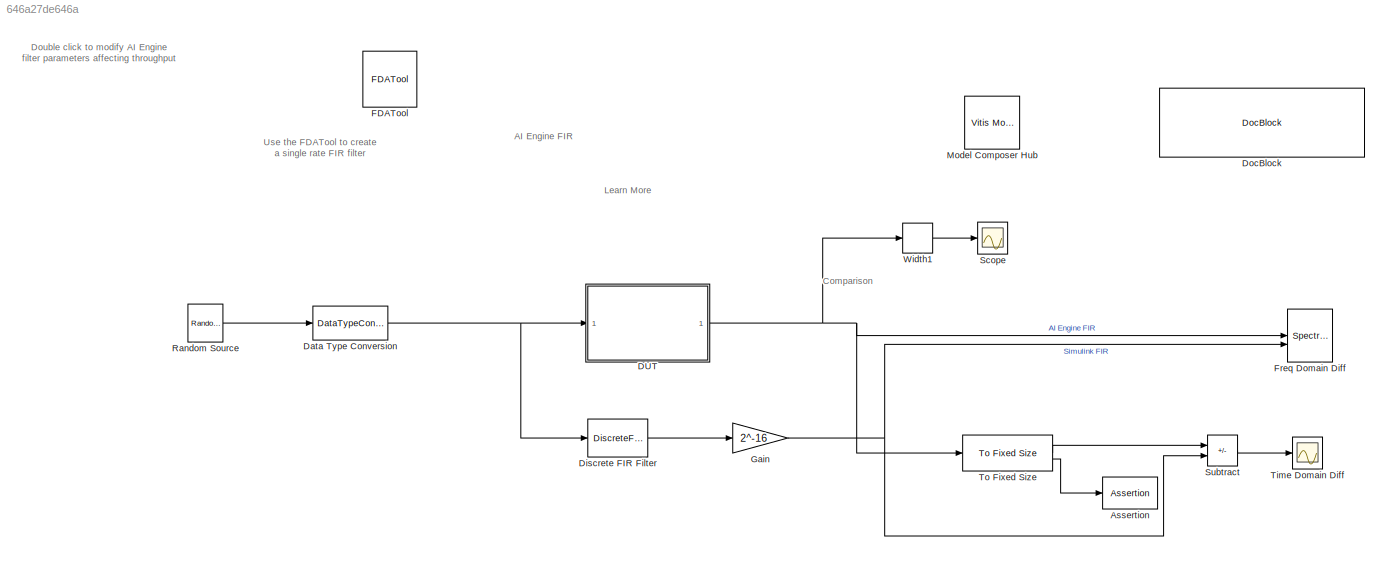
MODEL slx_646a27de646a
KIND model
CONFIG AbsTol = auto
CONFIG EnableMultiTasking = off
CONFIG FixedStep = auto
CONFIG InitFcn = set_params
CONFIG MaxStep = auto
CONFIG MinStep = auto
CONFIG RelTol = 1e-3
CONFIG SampleTimeConstraint = Unconstrained
CONFIG SolverName = VariableStepAuto
CONFIG StartTime = 0.0
CONFIG StopTime = 4096*1/200e6
WORKSPACE source: mxarray member
WORKSPACE cascade_stage = 6
WORKSPACE frame_size = 1024
WORKSPACE max_fft_size = 1024
WORKSPACE window_size = 256
BLOCK [Assertion] Assertion
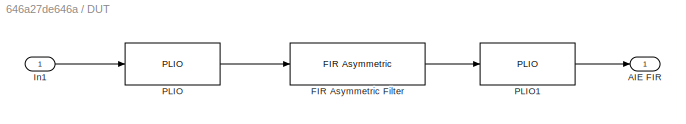
BLOCK [SubSystem] DUT
BLOCK [Outport] DUT/AIE FIR
BLOCK [Reference] DUT/FIR Asymmetric Filter  REF=aieDSP/FIR Asymmetric
  SourceBlock = aieDSP/FIR Asymmetric
  SourceType = FIR Asymmetric
BLOCK [Inport] DUT/In1
BLOCK [Reference] DUT/PLIO  REF=aieBasic/PLIO
  SourceBlock = aieBasic/PLIO
  SourceType = PLIO
BLOCK [Reference] DUT/PLIO1  REF=aieBasic/PLIO
  SourceBlock = aieBasic/PLIO
  SourceType = PLIO
BLOCK [DataTypeConversion] Data Type Conversion
  OutDataTypeStr = int16
  RndMeth = Floor
  SaturateOnIntegerOverflow = off
BLOCK [DiscreteFir] Discrete FIR Filter
  AccumDataTypeStr = fixdt(1,48,0)
  CoefDataTypeStr = int16
  Coefficients = int16(xlfda_numerator(strcat(bdroot,'/FDATool'))*2^15)
  InputPortMap = u0
  InputProcessing = Columns as channels (frame based)
  OutDataTypeStr = fixdt(1,32,0)
  OutputPortMap = o0
  ProductDataTypeStr = fixdt(1,32,0)
  SaturateOnIntegerOverflow = on
BLOCK [Reference] DocBlock  REF=simulink/Model-Wide
Utilities/DocBlock
  SourceBlock = simulink/Model-Wide\nUtilities/DocBlock
  SourceType = DocBlock
  UserDataPersistent = on
BLOCK [Reference] FDATool  REF=hdlUtilities/FDATool
  SourceBlock = hdlUtilities/FDATool
  SourceType = Xilinx FDATool Interface Block
  UserDataPersistent = on
BLOCK [SpectrumAnalyzer] Freq Domain Diff
  AllowFFTLengthLessThanSamplesPerUpdate = on
  AveragingMethod = Exponential
  ChannelNames = [""]
  DefaultConfigurationName = spbscopes.SpectrumAnalyzerBlockCfg
  GraphicalSettings = {"GraphicalSettings":{"SpectralMask":{"CustomReferenceLevel":"0","EnabledMasks":"None","LowerMask":"-Inf","MaskFrequencyOffset":"0","ReferenceLevel":"Custom","SelectedChannel":"1","UpperMask":"Inf"},"Style":{"BackgroundColor":[0.12941176470588237,0.12941176470588237,0.12941176470588237],"AxesColor":[0,0,0],"LabelsColor":[0.68627450980392157,0.68627450980392157,0.68627450980392157],"PreserveColors"...<+289ch>
  Method = Welch
  NumInputPorts = 2
  SampleRate = 200000000
  ScopeFrameLocation = window
  ScopeSpecificationString = spbscopes.SpectrumAnalyzerBlockCfg('CurrentConfiguration', extmgr.ConfigurationSet(extmgr.Configuration('Core','General UI',true,'FigureColor',[0.16        0.16        0.16]),extmgr.Configuration('Visuals','Spectrum',true,'Title','','YLabel','','MinYLim','-9.5266','MaxYLim','101.7549','Legend',true,'AxesProperties',struct('XGrid',{'on','on'},'YGrid',{'on','on'},'ZGrid',{'on','on'},'Color',{[0 0 0]...<+2393ch>
  ShowLegend = on
  Span = 200000000
  StartFrequency = -100000000
  StopFrequency = 100000000
  WasSavedAsWebScope = on
  WindowPosition = [322.000000,188.000000,882.000000,415.000000,]
  YLimits = [6.3733 98.9865]
BLOCK [Gain] Gain
  Gain = 2^-16
  OutDataTypeStr = int16
BLOCK [Reference] Model Composer Hub  REF=vmcUtilities/Vitis Model Composer Hub
  SourceBlock = vmcUtilities/Vitis Model Composer Hub
  SourceType = VMC Hub
  Tag = genX
  UserDataPersistent = on
BLOCK [Reference] Random Source  REF=dspobslib/Random
Source
  SourceBlock = dspobslib/Random\nSource
  SourceType = Random Source Obsolete
  UserDataPersistent = on
BLOCK [Scope] Scope
  Floating = off
  NumInputPorts = 1
  ScopeSpecificationString = Simulink.scopes.TimeScopeBlockCfg('CurrentConfiguration', extmgr.ConfigurationSet(extmgr.Configuration('Core','General UI',true,'DisplayFullSourceName',false,'ShowMainToolbar',true),extmgr.Configuration('Sources','WiredSimulink',true,'DataLogging',false,'DataLoggingVariableName','ScopeData','DataLoggingLimitDataPoints',false,'DataLoggingMaxPoints','5000','DataLoggingDecimateData',false,'DataLoggin...<+1988ch>
BLOCK [Sum] Subtract
  IconShape = rectangular
  Inputs = +-
BLOCK [Scope] Time Domain Diff
  Floating = off
  NumInputPorts = 1
  ScopeSpecificationString = Simulink.scopes.TimeScopeBlockCfg('CurrentConfiguration', extmgr.ConfigurationSet(extmgr.Configuration('Core','General UI',true,'DisplayFullSourceName',false,'ShowMainToolbar',true),extmgr.Configuration('Sources','WiredSimulink',true,'DataLogging',false,'DataLoggingVariableName','ScopeData1','DataLoggingLimitDataPoints',false,'DataLoggingMaxPoints','5000','DataLoggingDecimateData',false,'DataLoggi...<+1981ch>
BLOCK [Reference] To Fixed Size  REF=aieUtilities/To Fixed Size
  SourceBlock = aieUtilities/To Fixed Size
  SourceType = To Fixed Size
BLOCK [Width] Width1
ANNOTATION (root): Use the FDATool to create a single rate FIR filter
ANNOTATION (root): AI Engine FIR
ANNOTATION (root): Comparison
ANNOTATION (root): Double click to modify AI Engine filter parameters affecting throughput
ANNOTATION (root): Learn More
LINE DUT/FIR Asymmetric Filter:1 -> DUT/PLIO1:1
LINE DUT/In1:1 -> DUT/PLIO:1
LINE DUT/PLIO1:1 -> DUT/AIE FIR:1
LINE DUT/PLIO:1 -> DUT/FIR Asymmetric Filter:1
NET DUT:1 -> Freq Domain Diff:1, To Fixed Size:1, Width1:1
NET Data Type Conversion:1 -> DUT:1, Discrete FIR Filter:1
LINE Discrete FIR Filter:1 -> Gain:1
NET Gain:1 -> Freq Domain Diff:2, Subtract:2
LINE Random Source:1 -> Data Type Conversion:1
LINE Subtract:1 -> Time Domain Diff:1
LINE To Fixed Size:1 -> Subtract:1
LINE To Fixed Size:2 -> Assertion:1
LINE Width1:1 -> Scope:1
note: NET lines group one-source signal fan-out (src -> all destinations, sorted); 1:1 wires keep LINE
